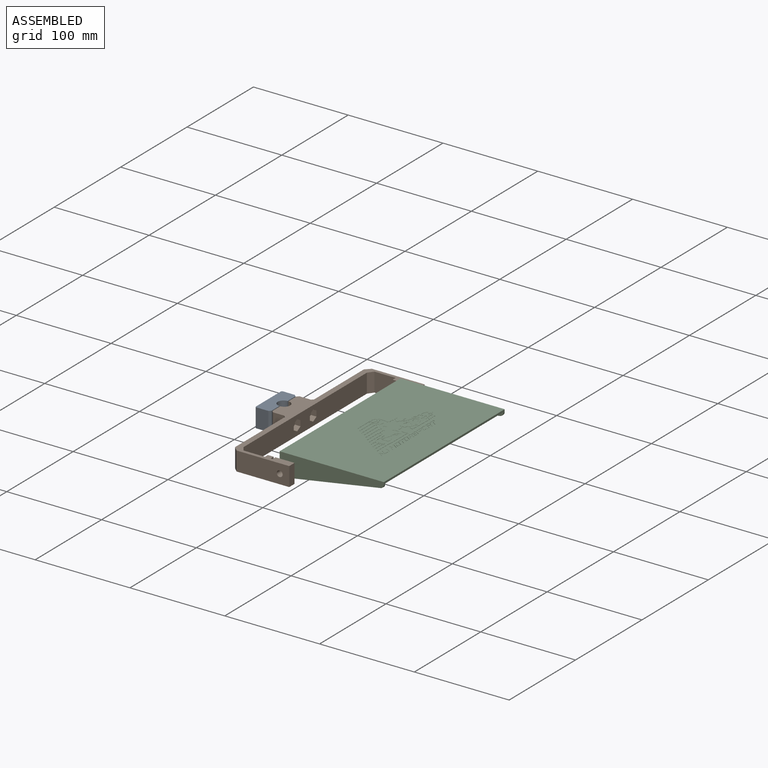
[diagram: assembled view]
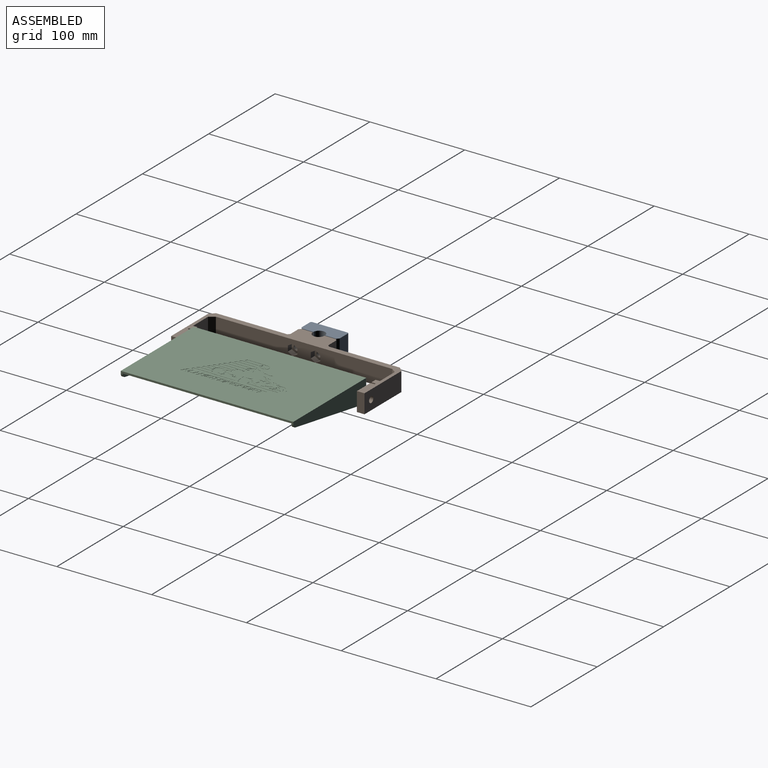
[diagram: assembled view, second angle]
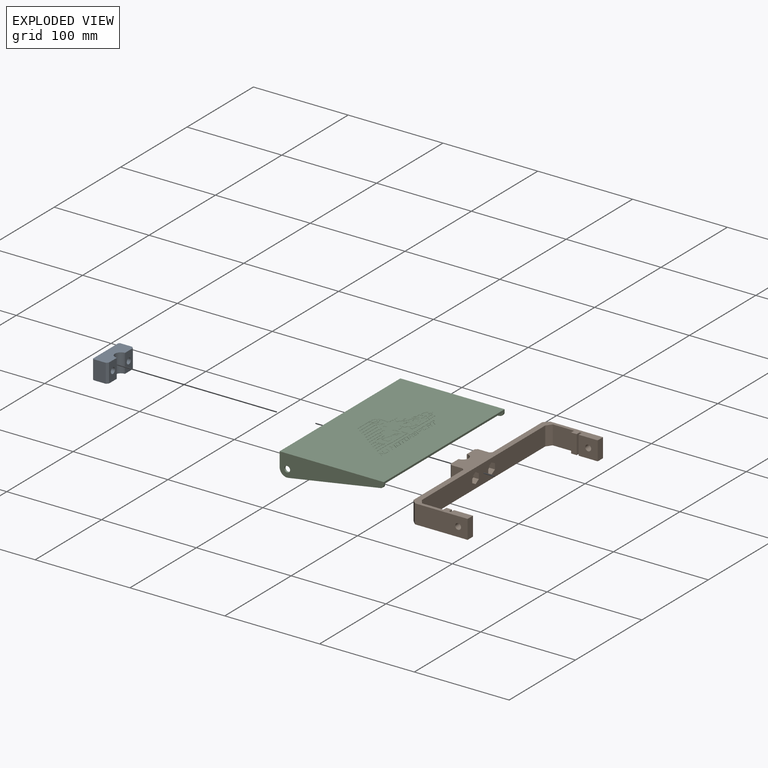
[diagram: exploded view]
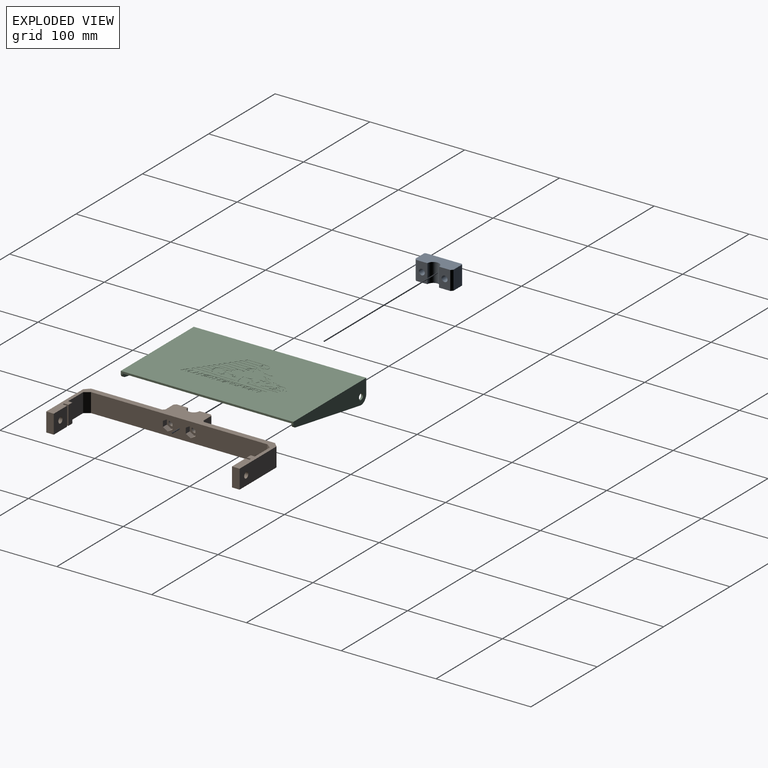
[diagram: exploded view, second angle]
ASSEMBLY  parts=3 mates=2
PART A: 14 faces, bbox 16x40x20 mm
  f0: plane 38x20mm, normal (-1,0,0), area 699.6mm2, adj f8,f9,f10,f11,f12,f13
  f1: plane 20x13mm, normal (0,-1,0), area 260mm2, adj f2,f8,f9,f11
  f2: plane 20x2mm, normal (0.71,-0.71,0), area 56.6mm2, adj f1,f3,f8,f9
  f3: plane 20x11.85mm, normal (1,0,0), area 206.8mm2, adj f2,f4,f8,f9,f13
  f4: cylinder r=6.15mm len=20mm, axis (0,0,-1), area 386.4mm2, adj f3,f5,f8,f9
  f5: plane 20x11.85mm, normal (1,0,0), area 206.8mm2, adj f4,f6,f8,f9,f12
  f6: plane 20x2mm, normal (0.71,0.71,0), area 56.6mm2, adj f5,f7,f8,f9
  f7: plane 20x13mm, normal (0,1,0), area 260mm2, adj f6,f8,f9,f10
  f8: plane 40x16mm, normal (0,0,1), area 575.6mm2, adj f0,f1,f2,f3,f4,f5,f6,f7
  f9: plane 40x16mm, normal (0,0,-1), area 575.6mm2, adj f0,f1,f2,f3,f4,f5,f6,f7
  f10: plane 20x1mm, normal (-0.71,0.71,0), area 28.3mm2, adj f0,f7,f8,f9
  f11: plane 20x1mm, normal (-0.71,-0.71,0), area 28.3mm2, adj f0,f1,f8,f9
  f12: cylinder r=3.1mm len=16mm, axis (1,0,0), area 311.6mm2, adj f0,f5
  f13: cylinder r=3.1mm len=16mm, axis (1,0,0), area 311.6mm2, adj f0,f3
PART B: 54 faces, bbox 76.6x204x20 mm
  f0: plane 204x76.6mm, normal (0,0,1), area 2418.7mm2, adj f2,f3,f6,f7,f8,f9,f10,f11
  f1: plane 204x76.6mm, normal (0,0,-1), area 2418.7mm2, adj f2,f3,f6,f7,f8,f9,f10,f11
  f2: plane 20x6mm, normal (0,-1,0), area 120mm2, adj f0,f1,f14,f50
  f3: plane 20x6mm, normal (0,1,0), area 120mm2, adj f0,f1,f18,f51
  f4: cylinder r=3.1mm len=16mm, axis (1,0,0), area 311.6mm2, adj f30,f43
  f5: cylinder r=3.1mm len=16mm, axis (1,0,0), area 311.6mm2, adj f6,f36
  f6: plane 20x11.85mm, normal (1,0,0), area 206.8mm2, adj f0,f1,f5,f33,f35
  f7: plane 75x20mm, normal (1,0,0), area 1500mm2, adj f0,f1,f26,f32
  f8: plane 75x20mm, normal (1,0,0), area 1500mm2, adj f0,f1,f27,f31
  f9: plane 55.6x20mm, normal (0,1,0), area 1081.8mm2, adj f0,f1,f10,f25,f27
  f10: plane 20x8mm, normal (-1,0,0), area 160mm2, adj f0,f1,f9,f11
  f11: plane 20.1x20mm, normal (0,-1,0), area 371.8mm2, adj f0,f1,f10,f12,f25
  f12: plane 20x4.5mm, normal (1,0,0), area 90mm2, adj f0,f1,f11,f13
  f13: plane 20x2mm, normal (0,-1,0), area 40mm2, adj f0,f1,f12,f14
  f14: plane 20x4.5mm, normal (-1,0,0), area 90mm2, adj f0,f1,f2,f13
  f15: plane 22.5x20mm, normal (0,-1,0), area 450mm2, adj f0,f1,f50,f53
  f16: plane 186x20mm, normal (-1,0,0), area 3543.3mm2, adj f0,f1,f37,f38,f39,f40,f41,f42
  f17: plane 22.5x20mm, normal (0,1,0), area 450mm2, adj f0,f1,f51,f52
  f18: plane 20x4.5mm, normal (-1,0,0), area 90mm2, adj f0,f1,f3,f19
  f19: plane 20x2mm, normal (0,1,0), area 40mm2, adj f0,f1,f18,f20
  f20: plane 20x4.5mm, normal (1,0,0), area 90mm2, adj f0,f1,f19,f21
  f21: plane 20.1x20mm, normal (0,1,0), area 371.8mm2, adj f0,f1,f20,f22,f24
  f22: plane 20x8mm, normal (-1,0,0), area 160mm2, adj f0,f1,f21,f23
  f23: plane 55.6x20mm, normal (0,-1,0), area 1081.8mm2, adj f0,f1,f22,f24,f26
  f24: cylinder r=3.1mm len=8mm, axis (0,1,0), area 155.8mm2, adj f21,f23
  f25: cylinder r=3.1mm len=8mm, axis (0,1,0), area 155.8mm2, adj f9,f11
  f26: plane 20x5mm, normal (0.71,-0.71,0), area 141.4mm2, adj f0,f1,f7,f23
  f27: plane 20x5mm, normal (0.71,0.71,0), area 141.4mm2, adj f0,f1,f8,f9
  f28: plane 20x12mm, normal (0,1,0), area 240mm2, adj f0,f1,f31,f33
  f29: plane 20x12mm, normal (0,-1,0), area 240mm2, adj f0,f1,f32,f34
  f30: plane 20x11.85mm, normal (1,0,0), area 206.8mm2, adj f0,f1,f4,f34,f35
  f31: plane 20x2mm, normal (0.71,0.71,0), area 56.6mm2, adj f0,f1,f8,f28
  f32: plane 20x2mm, normal (0.71,-0.71,0), area 56.6mm2, adj f0,f1,f7,f29
  f33: plane 20x2mm, normal (0.71,0.71,0), area 56.6mm2, adj f0,f1,f6,f28
  f34: plane 20x2mm, normal (0.71,-0.71,0), area 56.6mm2, adj f0,f1,f29,f30
  f35: cylinder r=6.15mm len=20mm, axis (0,0,1), area 386.4mm2, adj f0,f1,f6,f30
  f36: plane 11.66x10.1mm, normal (-1,0,0), area 58.2mm2, adj f5,f37,f38,f39,f40,f41,f42
  f37: plane 6x5.05mm, normal (0,-0.5,-0.87), area 35mm2, adj f16,f36,f38,f42
  f38: plane 6x5.83mm, normal (0,-1,0), area 35mm2, adj f16,f36,f37,f39
  f39: plane 6x5.05mm, normal (0,-0.5,0.87), area 35mm2, adj f16,f36,f38,f40
  f40: plane 6x5.05mm, normal (0,0.5,0.87), area 35mm2, adj f16,f36,f39,f41
  f41: plane 6x5.83mm, normal (0,1,0), area 35mm2, adj f16,f36,f40,f42
  f42: plane 6x5.05mm, normal (0,0.5,-0.87), area 35mm2, adj f16,f36,f37,f41
  f43: plane 11.66x10.1mm, normal (-1,0,0), area 58.2mm2, adj f4,f44,f45,f46,f47,f48,f49
  f44: plane 6x5.05mm, normal (0,0.5,0.87), area 35mm2, adj f16,f43,f45,f49
  f45: plane 6x5.83mm, normal (0,1,0), area 35mm2, adj f16,f43,f44,f46
  f46: plane 6x5.05mm, normal (0,0.5,-0.87), area 35mm2, adj f16,f43,f45,f47
  f47: plane 6x5.05mm, normal (0,-0.5,-0.87), area 35mm2, adj f16,f43,f46,f48
  f48: plane 6x5.83mm, normal (0,-1,0), area 35mm2, adj f16,f43,f47,f49
  f49: plane 6x5.05mm, normal (0,-0.5,0.87), area 35mm2, adj f16,f43,f44,f48
  f50: plane 20x4.5mm, normal (1,0,0), area 90mm2, adj f0,f1,f2,f15
  f51: plane 20x4.5mm, normal (1,0,0), area 90mm2, adj f0,f1,f3,f17
  f52: plane 20x5.5mm, normal (-0.81,0.59,0), area 136mm2, adj f0,f1,f16,f17
  f53: plane 20x5.5mm, normal (-0.81,-0.59,0), area 136mm2, adj f0,f1,f15,f16
PART C: 328 faces, bbox 182x110x23 mm
  f0: plane 182x110mm, normal (0,0,1), area 18876.2mm2, adj f1,f2,f3,f7,f16,f17,f18,f19
  f1: plane 182x2.62mm, normal (0,-1,0), area 366.5mm2, adj f0,f3,f4,f5,f6,f7,f14,f15
  f2: plane 182x15mm, normal (0,1,0), area 416mm2, adj f0,f3,f4,f5,f6,f7,f11,f12
  f3: plane 110x23mm, normal (-1,0,0), area 1622.4mm2, adj f0,f1,f2,f8,f10,f11,f15
  f4: plane 110x21mm, normal (-1,0,0), area 1402.4mm2, adj f1,f2,f6,f9,f12,f13,f14
  f5: plane 110x21mm, normal (1,0,0), area 1402.4mm2, adj f1,f2,f6,f8,f10,f11,f15
  f6: plane 178x110mm, normal (0,0,-1), area 19580mm2, adj f1,f2,f4,f5
  f7: plane 110x23mm, normal (1,0,0), area 1622.4mm2, adj f0,f1,f2,f9,f12,f13,f14
  f8: cylinder r=3.1mm len=6.2mm, axis (1,0,0), area 39mm2, adj f3,f5
  f9: cylinder r=3.1mm len=6.2mm, axis (1,0,0), area 39mm2, adj f4,f7
  f10: plane 97.34x16.33mm, normal (0,-0.17,-0.99), area 197.4mm2, adj f3,f5,f11,f15
  f11: cylinder r=8mm len=9.32mm, axis (1,0,0), area 27.8mm2, adj f2,f3,f5,f10
  f12: cylinder r=8mm len=9.32mm, axis (1,0,0), area 27.8mm2, adj f2,f4,f7,f13
  f13: plane 97.34x16.33mm, normal (0,-0.17,-0.99), area 197.4mm2, adj f4,f7,f12,f14
  f14: cylinder r=4mm len=3.95mm, axis (1,0,0), area 11.2mm2, adj f1,f4,f7,f13
  f15: cylinder r=4mm len=3.95mm, axis (1,0,0), area 11.2mm2, adj f1,f3,f5,f10
  f16: extruded ~47.07x40.95mm, area 30.6mm2, adj f0,f17,f33,f35
  f17: plane 14.24x0.64mm, normal (0.05,1,0), area 2.9mm2, adj f0,f16,f18,f35
  f18: extruded ~12.08x2.24mm, area 5.5mm2, adj f0,f17,f19,f35
  f19: plane 22.29x0.74mm, normal (-0.03,-1,0), area 4.5mm2, adj f0,f18,f20,f35
  f20: extruded ~9.96x7.16mm, area 5.6mm2, adj f0,f19,f21,f35
  f21: extruded ~8.52x5.39mm, area 5mm2, adj f0,f20,f33,f35
  f22: extruded ~6.02x1.97mm, area 2.8mm2, adj f35,f299
  f23: extruded ~4.75x4.23mm, area 2.7mm2, adj f35,f300
  f24: extruded ~5.88x2.39mm, area 2.6mm2, adj f35,f301
  f25: extruded ~3.27x2.12mm, area 1.8mm2, adj f35,f302
  f26: extruded ~3.14x2.17mm, area 2.1mm2, adj f35,f303
  f27: extruded ~7.17x3.3mm, area 3.7mm2, adj f35,f304
  f28: extruded ~3.35x1.55mm, area 1.6mm2, adj f35,f305
  f29: extruded ~1.97x1.96mm, area 1.2mm2, adj f35,f306
  f30: extruded ~6.01x1.98mm, area 2.8mm2, adj f35,f307
  f31: extruded ~4.3x3.26mm, area 2.9mm2, adj f35,f308
  f32: extruded ~13.27x3.95mm, area 6.7mm2, adj f35,f309
  f33: extruded ~32.89x20.79mm, area 21.1mm2, adj f0,f16,f21,f35
  f34: extruded ~7.51x6.16mm, area 5.2mm2, adj f35,f298
  f35: plane 74.07x41.19mm, normal (0,0,1), area 759mm2, adj f16,f17,f18,f19,f20,f21,f22,f23
  f36: plane 20.92x0.2mm, normal (0,-1,0), area 4.2mm2, adj f0,f37,f42,f43
  f37: plane 2x1.43mm, normal (0.81,-0.58,0), area 0.5mm2, adj f0,f36,f38,f43
  f38: plane 22.49x0.2mm, normal (0,1,0), area 4.5mm2, adj f0,f37,f39,f43
  f39: plane 0.58x0.2mm, normal (-0.95,-0.32,0), area 0.1mm2, adj f0,f38,f40,f43
  f40: plane 0.56x0.2mm, normal (-0.99,-0.14,0), area 0.1mm2, adj f0,f39,f41,f43
  f41: plane 0.8x0.2mm, normal (-1,0.06,0), area 0.2mm2, adj f0,f40,f42,f43
  f42: plane 0.2x0.08mm, normal (-0.56,0.83,0), area 0mm2, adj f0,f36,f41,f43
  f43: plane 22.49x2mm, normal (0,0,1), area 43.2mm2, adj f36,f37,f38,f39,f40,f41,f42
  f44: plane 17.73x0.2mm, normal (0,-1,0), area 3.5mm2, adj f0,f45,f50,f51
  f45: plane 2x1.43mm, normal (0.81,-0.58,0), area 0.5mm2, adj f0,f44,f46,f51
  f46: plane 19.6x0.2mm, normal (0,1,0), area 3.9mm2, adj f0,f45,f47,f51
  f47: plane 0.62x0.26mm, normal (-0.92,-0.39,0), area 0.1mm2, adj f0,f46,f48,f51
  f48: plane 0.44x0.2mm, normal (-0.94,-0.35,0), area 0.1mm2, adj f0,f47,f49,f51
  f49: plane 0.87x0.2mm, normal (-1,0,0), area 0.2mm2, adj f0,f48,f50,f51
  f50: plane 0.2x0.08mm, normal (-0.99,-0.15,0), area 0mm2, adj f0,f44,f49,f51
  f51: plane 19.6x2mm, normal (0,0,1), area 37.1mm2, adj f44,f45,f46,f47,f48,f49,f50
  f52: plane 19.6x0.2mm, normal (0,-1,0), area 3.9mm2, adj f0,f53,f59,f60
  f53: plane 2x1.43mm, normal (0.81,-0.58,0), area 0.5mm2, adj f0,f52,f54,f60
  f54: plane 16.94x0.2mm, normal (0,1,0), area 3.4mm2, adj f0,f53,f55,f60
  f55: extruded ~0.59x0.23mm, area 0.1mm2, adj f0,f54,f56,f60
  f56: extruded ~0.62x0.41mm, area 0.2mm2, adj f0,f55,f57,f60
  f57: extruded ~2.09x1.5mm, area 0.6mm2, adj f0,f56,f58,f60
  f58: extruded ~0.2x0.06mm, area 0mm2, adj f0,f57,f59,f60
  f59: extruded ~1.3x0.52mm, area 0.3mm2, adj f0,f52,f58,f60
  f60: plane 21.03x2.08mm, normal (0,0,1), area 35.3mm2, adj f52,f53,f54,f55,f56,f57,f58,f59
  f61: plane 21.26x0.2mm, normal (0,-1,0), area 4.3mm2, adj f0,f62,f67,f68
  f62: plane 2x1.43mm, normal (0.81,-0.58,0), area 0.5mm2, adj f0,f61,f63,f68
  f63: plane 20.32x0.2mm, normal (0,1,0), area 4.1mm2, adj f0,f62,f64,f68
  f64: plane 0.54x0.46mm, normal (-0.76,0.65,0), area 0.1mm2, adj f0,f63,f65,f68
  f65: plane 0.77x0.64mm, normal (-0.64,0.77,0), area 0.2mm2, adj f0,f64,f66,f68
  f66: extruded ~0.9x0.7mm, area 0.2mm2, adj f0,f65,f67,f68
  f67: plane 0.23x0.2mm, normal (-0.46,0.89,0), area 0.1mm2, adj f0,f61,f66,f68
  f68: plane 22.69x2mm, normal (0,0,1), area 41.3mm2, adj f61,f62,f63,f64,f65,f66,f67
  f69: plane 20.59x0.2mm, normal (0,-1,0), area 4.1mm2, adj f0,f70,f74,f75
  f70: plane 2x1.43mm, normal (0.81,-0.58,0), area 0.5mm2, adj f0,f69,f71,f75
  f71: plane 22.11x0.2mm, normal (0,1,0), area 4.4mm2, adj f0,f70,f72,f75
  f72: plane 0.2x0.11mm, normal (-0.97,0.24,0), area 0mm2, adj f0,f71,f73,f75
  f73: extruded ~1.35x0.2mm, area 0.3mm2, adj f0,f72,f74,f75
  f74: plane 0.54x0.2mm, normal (-1,0,0), area 0.1mm2, adj f0,f69,f73,f75
  f75: plane 22.14x2mm, normal (0,0,1), area 42.6mm2, adj f69,f70,f71,f72,f73,f74
  f76: plane 16.31x0.2mm, normal (0,-1,0), area 3.3mm2, adj f0,f77,f82,f83
  f77: plane 2x1.43mm, normal (0.81,-0.58,0), area 0.5mm2, adj f0,f76,f78,f83
  f78: plane 17.57x0.2mm, normal (0,1,0), area 3.5mm2, adj f0,f77,f79,f83
  f79: extruded ~0.2x0.12mm, area 0mm2, adj f0,f78,f80,f83
  f80: plane 0.64x0.2mm, normal (-0.95,-0.3,0), area 0.1mm2, adj f0,f79,f81,f83
  f81: plane 0.75x0.2mm, normal (-1,-0.08,0), area 0.2mm2, adj f0,f80,f82,f83
  f82: plane 0.48x0.35mm, normal (-0.81,0.58,0), area 0.1mm2, adj f0,f76,f81,f83
  f83: plane 17.74x2mm, normal (0,0,1), area 33.6mm2, adj f76,f77,f78,f79,f80,f81,f82
  f84: plane 17.62x0.2mm, normal (0,-1,0), area 3.5mm2, adj f0,f85,f92,f93
  f85: plane 2x1.43mm, normal (0.81,-0.58,0), area 0.5mm2, adj f0,f84,f86,f93
  f86: plane 7.81x0.2mm, normal (0,1,0), area 1.6mm2, adj f0,f85,f87,f93
  f87: extruded ~0.5x0.24mm, area 0.1mm2, adj f0,f86,f88,f93
  f88: plane 10.45x0.2mm, normal (0.01,1,0), area 2.1mm2, adj f0,f87,f89,f93
  f89: plane 0.54x0.2mm, normal (-1,0,0), area 0.1mm2, adj f0,f88,f90,f93
  f90: extruded ~0.47x0.22mm, area 0.1mm2, adj f0,f89,f91,f93
  f91: plane 0.66x0.2mm, normal (-1,0,0), area 0.1mm2, adj f0,f90,f92,f93
  f92: plane 0.2x0.17mm, normal (-0.92,0.4,0), area 0mm2, adj f0,f84,f91,f93
  f93: plane 19.05x2mm, normal (0,0,1), area 34.1mm2, adj f84,f85,f86,f87,f88,f89,f90,f91
  f94: plane 1.28x0.2mm, normal (0,-1,0), area 0.3mm2, adj f0,f95,f103,f104
  f95: plane 5.89x3.9mm, normal (0.83,-0.55,0), area 1.4mm2, adj f0,f94,f96,f104
  f96: plane 1.33x0.2mm, normal (0,1,0), area 0.3mm2, adj f0,f95,f97,f104
  f97: plane 3.9x2.54mm, normal (-0.84,0.55,0), area 0.9mm2, adj f0,f96,f98,f104
  f98: plane 3.96x0.76mm, normal (0.98,0.19,0), area 0.8mm2, adj f0,f97,f99,f104
  f99: plane 1.33x0.2mm, normal (0,1,0), area 0.3mm2, adj f0,f98,f100,f104
  f100: plane 5.95x3.87mm, normal (-0.84,0.55,0), area 1.4mm2, adj f0,f99,f101,f104
  f101: plane 1.31x0.2mm, normal (0,-1,0), area 0.3mm2, adj f0,f100,f102,f104
  f102: plane 3.97x2.58mm, normal (0.84,-0.55,0), area 0.9mm2, adj f0,f101,f103,f104
  f103: plane 3.97x0.78mm, normal (-0.98,-0.19,0), area 0.8mm2, adj f0,f94,f102,f104
  f104: plane 9.84x5.95mm, normal (0,0,1), area 22.2mm2, adj f94,f95,f96,f97,f98,f99,f100,f101
  f105: plane 4.63x3.01mm, normal (0.84,-0.55,0), area 1.1mm2, adj f0,f106,f114,f115
  f106: plane 3.42x0.2mm, normal (0,-1,0), area 0.7mm2, adj f0,f105,f107,f115
  f107: plane 0.59x0.39mm, normal (-0.83,0.55,0), area 0.1mm2, adj f0,f106,f108,f115
  f108: plane 1.23x0.2mm, normal (0,-1,0), area 0.2mm2, adj f0,f107,f109,f115
  f109: plane 1.02x0.66mm, normal (0.84,-0.55,0), area 0.2mm2, adj f0,f108,f110,f115
  f110: cylinder r=0.58mm len=0.89mm, axis (0,0,1), area 0.2mm2, adj f0,f109,f111,f115
  f111: plane 3.57x0.2mm, normal (0,1,0), area 0.7mm2, adj f0,f110,f112,f115
  f112: cylinder r=2.32mm len=1.94mm, axis (0,0,1), area 0.5mm2, adj f0,f111,f113,f115
  f113: plane 4.9x3.19mm, normal (-0.84,0.55,0), area 1.2mm2, adj f0,f112,f114,f115
  f114: plane 1.26x0.2mm, normal (0,-1,0), area 0.3mm2, adj f0,f105,f113,f115
  f115: plane 9.28x5.95mm, normal (0,0,1), area 13.8mm2, adj f105,f106,f107,f108,f109,f110,f111,f112
  f116: cylinder r=0.58mm len=0.89mm, axis (0,0,1), area 0.2mm2, adj f0,f117,f127,f128
  f117: plane 3.68x0.2mm, normal (0,1,0), area 0.7mm2, adj f0,f116,f118,f128
  f118: cylinder r=2.32mm len=1.97mm, axis (0,0,1), area 0.5mm2, adj f0,f117,f119,f128
  f119: plane 3.98x2.48mm, normal (-0.85,0.53,0), area 0.9mm2, adj f0,f118,f120,f128
  f120: cylinder r=0.58mm len=0.89mm, axis (0,0,1), area 0.2mm2, adj f0,f119,f121,f128
  f121: plane 3.61x0.2mm, normal (0,-1,0), area 0.7mm2, adj f0,f120,f122,f128
  f122: cylinder r=2.32mm len=1.95mm, axis (0,0,1), area 0.5mm2, adj f0,f121,f127,f128
  f123: plane 3.43x2.2mm, normal (-0.84,0.54,0), area 0.8mm2, adj f124,f126,f128,f129
  f124: plane 3.3x0.2mm, normal (0,1,0), area 0.7mm2, adj f123,f125,f128,f129
  f125: plane 3.43x2.15mm, normal (0.85,-0.53,0), area 0.8mm2, adj f124,f126,f128,f129
  f126: plane 3.34x0.2mm, normal (0,-1,0), area 0.7mm2, adj f123,f125,f128,f129
  f127: plane 4x2.57mm, normal (0.84,-0.54,0), area 0.9mm2, adj f0,f116,f122,f128
  f128: plane 8.79x5.95mm, normal (0,0,1), area 23.1mm2, adj f116,f117,f118,f119,f120,f121,f122,f123
  f129: plane 5.5x3.43mm, normal (0,0,1), area 11.4mm2, adj f123,f124,f125,f126
  f130: plane 4.93x0.2mm, normal (0,-1,0), area 1mm2, adj f0,f131,f146,f147
  f131: plane 5.95x3.86mm, normal (0.84,-0.54,0), area 1.4mm2, adj f0,f130,f132,f147
  f132: plane 1.35x0.2mm, normal (0,1,0), area 0.3mm2, adj f0,f131,f133,f147
  f133: plane 1.94x1.23mm, normal (-0.84,0.54,0), area 0.5mm2, adj f0,f132,f134,f147
  f134: plane 1.77x0.2mm, normal (0,1,0), area 0.4mm2, adj f0,f133,f135,f147
  f135: plane 1.94x0.34mm, normal (0.98,0.17,0), area 0.4mm2, adj f0,f134,f136,f147
  f136: plane 1.3x0.2mm, normal (0,1,0), area 0.3mm2, adj f0,f135,f137,f147
  f137: plane 0.43x0.28mm, normal (-0.84,0.54,0), area 0.1mm2, adj f0,f136,f138,f147
  f138: plane 1.54x0.28mm, normal (-0.98,-0.18,0), area 0.3mm2, adj f0,f137,f139,f147
  f139: plane 0.2x0.01mm, normal (0,1,0), area 0mm2, adj f0,f138,f140,f147
  f140: cylinder r=2.32mm len=1.94mm, axis (0,0,1), area 0.5mm2, adj f0,f139,f141,f147
  f141: plane 2.04x1.32mm, normal (-0.84,0.54,0), area 0.5mm2, adj f0,f140,f146,f147
  f142: plane 1.37x0.87mm, normal (-0.84,0.54,0), area 0.3mm2, adj f143,f145,f147,f148
  f143: plane 3.32x0.2mm, normal (0,1,0), area 0.7mm2, adj f142,f144,f147,f148
  f144: plane 1.37x0.87mm, normal (0.84,-0.54,0), area 0.3mm2, adj f143,f145,f147,f148
  f145: plane 3.32x0.2mm, normal (0,-1,0), area 0.7mm2, adj f142,f144,f147,f148
  f146: cylinder r=0.58mm len=0.89mm, axis (0,0,1), area 0.2mm2, adj f0,f130,f141,f147
  f147: plane 9.36x5.95mm, normal (0,0,1), area 24.7mm2, adj f130,f131,f132,f133,f134,f135,f136,f137
  f148: plane 4.19x1.37mm, normal (0,0,1), area 4.5mm2, adj f142,f143,f144,f145
  f149: cylinder r=0.58mm len=0.89mm, axis (0,0,1), area 0.2mm2, adj f0,f150,f160,f161
  f150: plane 3.68x0.2mm, normal (0,1,0), area 0.7mm2, adj f0,f149,f151,f161
  f151: cylinder r=2.32mm len=1.97mm, axis (0,0,1), area 0.5mm2, adj f0,f150,f152,f161
  f152: plane 3.98x2.48mm, normal (-0.85,0.53,0), area 0.9mm2, adj f0,f151,f153,f161
  f153: cylinder r=0.58mm len=0.89mm, axis (0,0,1), area 0.2mm2, adj f0,f152,f154,f161
  f154: plane 3.61x0.2mm, normal (0,-1,0), area 0.7mm2, adj f0,f153,f155,f161
  f155: cylinder r=2.32mm len=1.95mm, axis (0,0,1), area 0.5mm2, adj f0,f154,f160,f161
  f156: plane 3.43x2.2mm, normal (-0.84,0.54,0), area 0.8mm2, adj f157,f159,f161,f162
  f157: plane 3.3x0.2mm, normal (0,1,0), area 0.7mm2, adj f156,f158,f161,f162
  f158: plane 3.43x2.15mm, normal (0.85,-0.53,0), area 0.8mm2, adj f157,f159,f161,f162
  f159: plane 3.34x0.2mm, normal (0,-1,0), area 0.7mm2, adj f156,f158,f161,f162
  f160: plane 4x2.57mm, normal (0.84,-0.54,0), area 0.9mm2, adj f0,f149,f155,f161
  f161: plane 8.79x5.95mm, normal (0,0,1), area 23.1mm2, adj f149,f150,f151,f152,f153,f154,f155,f156
  f162: plane 5.5x3.43mm, normal (0,0,1), area 11.4mm2, adj f156,f157,f158,f159
  f163: plane 3.98x2.48mm, normal (-0.85,0.53,0), area 0.9mm2, adj f0,f164,f174,f175
  f164: cylinder r=0.58mm len=0.89mm, axis (0,0,1), area 0.2mm2, adj f0,f163,f165,f175
  f165: plane 3.61x0.2mm, normal (0,-1,0), area 0.7mm2, adj f0,f164,f166,f175
  f166: cylinder r=2.32mm len=1.95mm, axis (0,0,1), area 0.5mm2, adj f0,f165,f167,f175
  f167: plane 4x2.57mm, normal (0.84,-0.54,0), area 0.9mm2, adj f0,f166,f168,f175
  f168: cylinder r=0.58mm len=0.89mm, axis (0,0,1), area 0.2mm2, adj f0,f167,f169,f175
  f169: plane 3.68x0.2mm, normal (0,1,0), area 0.7mm2, adj f0,f168,f174,f175
  f170: plane 3.34x0.2mm, normal (0,-1,0), area 0.7mm2, adj f171,f173,f175,f176
  f171: plane 3.43x2.2mm, normal (-0.84,0.54,0), area 0.8mm2, adj f170,f172,f175,f176
  f172: plane 3.3x0.2mm, normal (0,1,0), area 0.7mm2, adj f171,f173,f175,f176
  f173: plane 3.43x2.15mm, normal (0.85,-0.53,0), area 0.8mm2, adj f170,f172,f175,f176
  f174: cylinder r=2.32mm len=1.97mm, axis (0,0,1), area 0.5mm2, adj f0,f163,f169,f175
  f175: plane 8.79x5.95mm, normal (0,0,1), area 23.1mm2, adj f163,f164,f165,f166,f167,f168,f169,f170
  f176: plane 5.5x3.43mm, normal (0,0,1), area 11.4mm2, adj f170,f171,f172,f173
  f177: plane 4.93x0.2mm, normal (0,-1,0), area 1mm2, adj f0,f178,f193,f194
  f178: plane 5.95x3.86mm, normal (0.84,-0.54,0), area 1.4mm2, adj f0,f177,f179,f194
  f179: plane 1.35x0.2mm, normal (0,1,0), area 0.3mm2, adj f0,f178,f180,f194
  f180: plane 1.94x1.23mm, normal (-0.84,0.54,0), area 0.5mm2, adj f0,f179,f181,f194
  f181: plane 1.77x0.2mm, normal (0,1,0), area 0.4mm2, adj f0,f180,f182,f194
  f182: plane 1.94x0.34mm, normal (0.98,0.17,0), area 0.4mm2, adj f0,f181,f183,f194
  f183: plane 1.3x0.2mm, normal (0,1,0), area 0.3mm2, adj f0,f182,f184,f194
  f184: plane 0.43x0.28mm, normal (-0.84,0.54,0), area 0.1mm2, adj f0,f183,f185,f194
  f185: plane 1.54x0.28mm, normal (-0.98,-0.18,0), area 0.3mm2, adj f0,f184,f186,f194
  f186: plane 0.2x0.01mm, normal (0,1,0), area 0mm2, adj f0,f185,f187,f194
  f187: cylinder r=2.32mm len=1.94mm, axis (0,0,1), area 0.5mm2, adj f0,f186,f188,f194
  f188: plane 2.04x1.32mm, normal (-0.84,0.54,0), area 0.5mm2, adj f0,f187,f193,f194
  f189: plane 1.37x0.87mm, normal (-0.84,0.54,0), area 0.3mm2, adj f190,f192,f194,f195
  f190: plane 3.32x0.2mm, normal (0,1,0), area 0.7mm2, adj f189,f191,f194,f195
  f191: plane 1.37x0.87mm, normal (0.84,-0.54,0), area 0.3mm2, adj f190,f192,f194,f195
  f192: plane 3.32x0.2mm, normal (0,-1,0), area 0.7mm2, adj f189,f191,f194,f195
  f193: cylinder r=0.58mm len=0.89mm, axis (0,0,1), area 0.2mm2, adj f0,f177,f188,f194
  f194: plane 9.36x5.95mm, normal (0,0,1), area 24.7mm2, adj f177,f178,f179,f180,f181,f182,f183,f184
  f195: plane 4.19x1.37mm, normal (0,0,1), area 4.5mm2, adj f189,f190,f191,f192
  f196: plane 3.4x0.2mm, normal (0,1,0), area 0.7mm2, adj f0,f197,f207,f208
  f197: cylinder r=2.32mm len=1.93mm, axis (0,0,1), area 0.5mm2, adj f0,f196,f198,f208
  f198: plane 2.05x1.35mm, normal (-0.83,0.55,0), area 0.5mm2, adj f0,f197,f199,f208
  f199: cylinder r=0.58mm len=0.9mm, axis (0,0,1), area 0.2mm2, adj f0,f198,f200,f208
  f200: plane 4.87x0.2mm, normal (0,-1,0), area 1mm2, adj f0,f199,f201,f208
  f201: plane 5.95x3.92mm, normal (0.84,-0.55,0), area 1.4mm2, adj f0,f200,f202,f208
  f202: plane 1.33x0.2mm, normal (0,1,0), area 0.3mm2, adj f0,f201,f207,f208
  f203: plane 3.34x0.2mm, normal (-0.01,-1,0), area 0.7mm2, adj f204,f206,f208,f209
  f204: plane 1.42x0.9mm, normal (-0.84,0.54,0), area 0.3mm2, adj f203,f205,f208,f209
  f205: plane 3.34x0.2mm, normal (0,1,0), area 0.7mm2, adj f204,f206,f208,f209
  f206: plane 1.44x0.9mm, normal (0.85,-0.53,0), area 0.3mm2, adj f203,f205,f208,f209
  f207: plane 1.96x1.26mm, normal (-0.84,0.54,0), area 0.5mm2, adj f0,f196,f202,f208
  f208: plane 9.37x5.95mm, normal (0,0,1), area 21mm2, adj f196,f197,f198,f199,f200,f201,f202,f203
  f209: plane 4.24x1.44mm, normal (0,0,1), area 4.8mm2, adj f203,f204,f205,f206
  f210: plane 1.36x0.2mm, normal (0,-1,0), area 0.3mm2, adj f0,f211,f221,f222
  f211: plane 5.95x3.9mm, normal (0.84,-0.55,0), area 1.4mm2, adj f0,f210,f212,f222
  f212: plane 1.32x0.2mm, normal (0,1,0), area 0.3mm2, adj f0,f211,f213,f222
  f213: plane 3.95x2.55mm, normal (-0.84,0.54,0), area 0.9mm2, adj f0,f212,f214,f222
  f214: plane 2.36x0.56mm, normal (0.97,0.23,0), area 0.5mm2, adj f0,f213,f215,f222
  f215: plane 3.47x2.29mm, normal (-0.55,0.84,0), area 0.8mm2, adj f0,f214,f216,f222
  f216: plane 3.88x2.54mm, normal (0.84,-0.55,0), area 0.9mm2, adj f0,f215,f217,f222
  f217: plane 1.35x0.2mm, normal (0,1,0), area 0.3mm2, adj f0,f216,f218,f222
  f218: plane 5.95x3.83mm, normal (-0.84,0.54,0), area 1.4mm2, adj f0,f217,f219,f222
  f219: plane 1.39x0.2mm, normal (0,-1,0), area 0.3mm2, adj f0,f218,f220,f222
  f220: plane 3.52x2.39mm, normal (0.56,-0.83,0), area 0.9mm2, adj f0,f219,f221,f222
  f221: plane 2.39x0.37mm, normal (-0.99,-0.15,0), area 0.5mm2, adj f0,f210,f220,f222
  f222: plane 10.54x5.95mm, normal (0,0,1), area 23.9mm2, adj f210,f211,f212,f213,f214,f215,f216,f217
  f223: plane 6.04x0.2mm, normal (0,-1,0), area 1.2mm2, adj f0,f224,f230,f231
  f224: plane 1.34x0.85mm, normal (0.84,-0.54,0), area 0.3mm2, adj f0,f223,f225,f231
  f225: plane 2.32x0.2mm, normal (0,1,0), area 0.5mm2, adj f0,f224,f226,f231
  f226: plane 4.61x2.99mm, normal (0.84,-0.54,0), area 1.1mm2, adj f0,f225,f227,f231
  f227: plane 1.38x0.2mm, normal (0,1,0), area 0.3mm2, adj f0,f226,f228,f231
  f228: plane 4.61x3.02mm, normal (-0.84,0.55,0), area 1.1mm2, adj f0,f227,f229,f231
  f229: plane 2.29x0.2mm, normal (0,1,0), area 0.5mm2, adj f0,f228,f230,f231
  f230: plane 1.34x0.88mm, normal (-0.84,0.55,0), area 0.3mm2, adj f0,f223,f229,f231
  f231: plane 7.56x5.95mm, normal (0,0,1), area 14.5mm2, adj f223,f224,f225,f226,f227,f228,f229,f230
  f232: plane 1.03x0.65mm, normal (-0.84,0.54,0), area 0.2mm2, adj f0,f233,f253,f254
  f233: plane 3.31x0.2mm, normal (0,1,0), area 0.7mm2, adj f0,f232,f234,f254
  f234: plane 0.43x0.27mm, normal (0.84,-0.54,0), area 0.1mm2, adj f0,f233,f235,f254
  f235: plane 1.29x0.2mm, normal (0,1,0), area 0.3mm2, adj f0,f234,f236,f254
  f236: plane 0.84x0.54mm, normal (-0.84,0.54,0), area 0.2mm2, adj f0,f235,f237,f254
  f237: cylinder r=0.58mm len=0.89mm, axis (0,0,1), area 0.2mm2, adj f0,f236,f238,f254
  f238: plane 3.66x0.2mm, normal (0,-1,0), area 0.7mm2, adj f0,f237,f239,f254
  f239: cylinder r=2.32mm len=1.96mm, axis (0,0,1), area 0.5mm2, adj f0,f238,f240,f254
  f240: plane 1.58x1mm, normal (0.85,-0.53,0), area 0.4mm2, adj f0,f239,f241,f254
  f241: cylinder r=0.58mm len=0.89mm, axis (0,0,1), area 0.2mm2, adj f0,f240,f242,f254
  f242: plane 3.56x0.2mm, normal (0,1,0), area 0.7mm2, adj f0,f241,f243,f254
  f243: plane 1.08x0.68mm, normal (0.85,-0.53,0), area 0.3mm2, adj f0,f242,f244,f254
  f244: plane 3.29x0.2mm, normal (0,-1,0), area 0.7mm2, adj f0,f243,f245,f254
  f245: plane 0.47x0.29mm, normal (-0.85,0.53,0), area 0.1mm2, adj f0,f244,f246,f254
  f246: plane 1.31x0.2mm, normal (0,-1,0), area 0.3mm2, adj f0,f245,f247,f254
  f247: plane 0.9x0.57mm, normal (0.85,-0.53,0), area 0.2mm2, adj f0,f246,f248,f254
  f248: cylinder r=0.58mm len=0.89mm, axis (0,0,1), area 0.2mm2, adj f0,f247,f249,f254
  f249: plane 3.64x0.2mm, normal (0,1,0), area 0.7mm2, adj f0,f248,f250,f254
  f250: cylinder r=2.32mm len=1.95mm, axis (0,0,1), area 0.5mm2, adj f0,f249,f251,f254
  f251: plane 1.66x1.05mm, normal (-0.84,0.54,0), area 0.4mm2, adj f0,f250,f252,f254
  f252: cylinder r=0.58mm len=0.89mm, axis (0,0,1), area 0.2mm2, adj f0,f251,f253,f254
  f253: plane 3.54x0.2mm, normal (0,-1,0), area 0.7mm2, adj f0,f232,f252,f254
  f254: plane 8.8x5.95mm, normal (0,0,1), area 25.5mm2, adj f232,f233,f234,f235,f236,f237,f238,f239
  f255: plane 1.38x0.2mm, normal (0,1,0), area 0.3mm2, adj f0,f256,f262,f263
  f256: plane 4.61x3.02mm, normal (-0.84,0.55,0), area 1.1mm2, adj f0,f255,f257,f263
  f257: plane 2.29x0.2mm, normal (0,1,0), area 0.5mm2, adj f0,f256,f258,f263
  f258: plane 1.34x0.88mm, normal (-0.84,0.55,0), area 0.3mm2, adj f0,f257,f259,f263
  f259: plane 6.04x0.2mm, normal (0,-1,0), area 1.2mm2, adj f0,f258,f260,f263
  f260: plane 1.34x0.85mm, normal (0.84,-0.54,0), area 0.3mm2, adj f0,f259,f261,f263
  f261: plane 2.32x0.2mm, normal (0,1,0), area 0.5mm2, adj f0,f260,f262,f263
  f262: plane 4.61x2.99mm, normal (0.84,-0.54,0), area 1.1mm2, adj f0,f255,f261,f263
  f263: plane 7.56x5.95mm, normal (0,0,1), area 14.5mm2, adj f255,f256,f257,f258,f259,f260,f261,f262
  f264: extruded ~4.27x0.5mm, area 0.9mm2, adj f0,f265,f271,f272
  f265: plane 18.2x0.2mm, normal (0,-1,0), area 3.6mm2, adj f0,f264,f266,f272
  f266: plane 1.82x1.3mm, normal (0.81,-0.58,0), area 0.4mm2, adj f0,f265,f267,f272
  f267: plane 46.75x0.39mm, normal (0.01,1,0), area 9.3mm2, adj f0,f266,f268,f272
  f268: plane 0.2x0.16mm, normal (-0.86,-0.51,0), area 0mm2, adj f0,f267,f269,f272
  f269: plane 1.14x1.01mm, normal (-0.75,-0.66,0), area 0.3mm2, adj f0,f268,f270,f272
  f270: plane 0.23x0.22mm, normal (-0.72,-0.69,0), area 0.1mm2, adj f0,f269,f271,f272
  f271: plane 21.65x0.2mm, normal (-0.01,-1,0), area 4.3mm2, adj f0,f264,f270,f272
  f272: plane 46.75x2.2mm, normal (0,0,1), area 76.8mm2, adj f264,f265,f266,f267,f268,f269,f270,f271
  f273: plane 0.28x0.2mm, normal (-0.92,-0.39,0), area 0.1mm2, adj f0,f274,f279,f280
  f274: plane 11.2x0.2mm, normal (0,-1,0), area 2.2mm2, adj f0,f273,f275,f280
  f275: plane 2x1.43mm, normal (0.81,-0.58,0), area 0.5mm2, adj f0,f274,f276,f280
  f276: plane 13.39x0.2mm, normal (0,1,0), area 2.7mm2, adj f0,f275,f277,f280
  f277: plane 0.2x0.02mm, normal (-0.74,-0.67,0), area 0mm2, adj f0,f276,f278,f280
  f278: plane 0.35x0.22mm, normal (-0.85,-0.53,0), area 0.1mm2, adj f0,f277,f279,f280
  f279: extruded ~1.35x0.4mm, area 0.3mm2, adj f0,f273,f278,f280
  f280: plane 13.39x2mm, normal (0,0,1), area 24.5mm2, adj f273,f274,f275,f276,f277,f278,f279
  f281: plane 7.98x0.2mm, normal (0,-1,0), area 1.6mm2, adj f0,f282,f287,f288
  f282: plane 2x1.43mm, normal (0.81,-0.58,0), area 0.5mm2, adj f0,f281,f283,f288
  f283: plane 9.39x0.2mm, normal (0,1,0), area 1.9mm2, adj f0,f282,f284,f288
  f284: extruded ~0.31x0.2mm, area 0.1mm2, adj f0,f283,f285,f288
  f285: plane 0.38x0.2mm, normal (-1,0,0), area 0.1mm2, adj f0,f284,f286,f288
  f286: plane 0.97x0.2mm, normal (-1,0.04,0), area 0.2mm2, adj f0,f285,f287,f288
  f287: plane 0.35x0.2mm, normal (-1,0,0), area 0.1mm2, adj f0,f281,f286,f288
  f288: plane 9.41x2mm, normal (0,0,1), area 17.3mm2, adj f281,f282,f283,f284,f285,f286,f287
  f289: plane 6.4x0.2mm, normal (0,-1,0), area 1.3mm2, adj f0,f290,f294,f295
  f290: plane 2x1.43mm, normal (0.81,-0.58,0), area 0.5mm2, adj f0,f289,f291,f295
  f291: plane 6.91x0.2mm, normal (0,1,0), area 1.4mm2, adj f0,f290,f292,f295
  f292: plane 0.29x0.2mm, normal (-0.97,0.25,0), area 0.1mm2, adj f0,f291,f293,f295
  f293: extruded ~1.36x0.6mm, area 0.3mm2, adj f0,f292,f294,f295
  f294: plane 0.35x0.25mm, normal (-0.81,0.58,0), area 0.1mm2, adj f0,f289,f293,f295
  f295: plane 7.83x2mm, normal (0,0,1), area 13.2mm2, adj f289,f290,f291,f292,f293,f294
  f296: extruded ~5.85x3.82mm, area 3.3mm2, adj f0,f297
  f297: plane 5.97x3.96mm, normal (0,0,1), area 14mm2, adj f296
  f298: plane 7.57x6.25mm, normal (0,0,1), area 31.3mm2, adj f34
  f299: plane 6.04x2.03mm, normal (0,0,1), area 3.1mm2, adj f22
  f300: plane 4.86x4.31mm, normal (0,0,1), area 2.8mm2, adj f23
  f301: plane 5.96x2.44mm, normal (0,0,1), area 5mm2, adj f24
  f302: plane 3.36x2.27mm, normal (0,0,1), area 2.3mm2, adj f25
  f303: plane 3.2x2.19mm, normal (0,0,1), area 2.3mm2, adj f26
  f304: plane 7.23x3.48mm, normal (0,0,1), area 9.1mm2, adj f27
  f305: plane 3.42x1.77mm, normal (0,0,1), area 2.2mm2, adj f28
  f306: plane 1.99x1.98mm, normal (0,0,1), area 2.6mm2, adj f29
  f307: plane 6.03x2mm, normal (0,0,1), area 3.4mm2, adj f30
  f308: plane 4.38x3.31mm, normal (0,0,1), area 6.9mm2, adj f31
  f309: plane 13.44x3.99mm, normal (0,0,1), area 9.8mm2, adj f32
  f310: extruded ~1.5x0.46mm, area 0.7mm2, adj f0,f311
  f311: plane 1.57x0.48mm, normal (0,0,1), area 0.5mm2, adj f310
  f312: extruded ~11.8x4.9mm, area 6.1mm2, adj f0,f313
  f313: plane 12.01x5.06mm, normal (0,0,1), area 25.8mm2, adj f312
  f314: extruded ~2.54x2.12mm, area 1.3mm2, adj f0,f315
  f315: plane 2.58x2.16mm, normal (0,0,1), area 1.4mm2, adj f314
  f316: extruded ~5.89x3.91mm, area 2.9mm2, adj f0,f317
  f317: plane 5.96x3.94mm, normal (0,0,1), area 6mm2, adj f316
  f318: extruded ~4.11x1.11mm, area 1.8mm2, adj f0,f319
  f319: plane 4.2x1.16mm, normal (0,0,1), area 2.3mm2, adj f318
  f320: extruded ~1.16x0.65mm, area 0.6mm2, adj f0,f321
  f321: plane 1.25x0.7mm, normal (0,0,1), area 0.4mm2, adj f320
  f322: extruded ~3.15x1.6mm, area 1.5mm2, adj f0,f323
  f323: plane 3.33x1.68mm, normal (0,0,1), area 3mm2, adj f322
  f324: extruded ~12.2x5.18mm, area 8.8mm2, adj f0,f325
  f325: plane 12.64x5.4mm, normal (0,0,1), area 19mm2, adj f324
  f326: extruded ~11.39x7.2mm, area 8.7mm2, adj f0,f327
  f327: plane 11.63x7.29mm, normal (0,0,1), area 38.8mm2, adj f326
PLACE A t=(14.31,40.13,38.08)mm
PLACE B rot(axis=(0,0,1),180deg) t=(56.77,146.29,38.08)mm
PLACE C rot(axis=(0,0,1),90deg) t=(136.7,42.59,61.08)mm
MATE slider C.f8 <-> B.f24  axis (0,-1,0) through (89.7,-48.41,48.08)mm
MATE slider B.f4 <-> A.f12  axis (-1,0,0) through (23.15,54.4,48.08)mm
